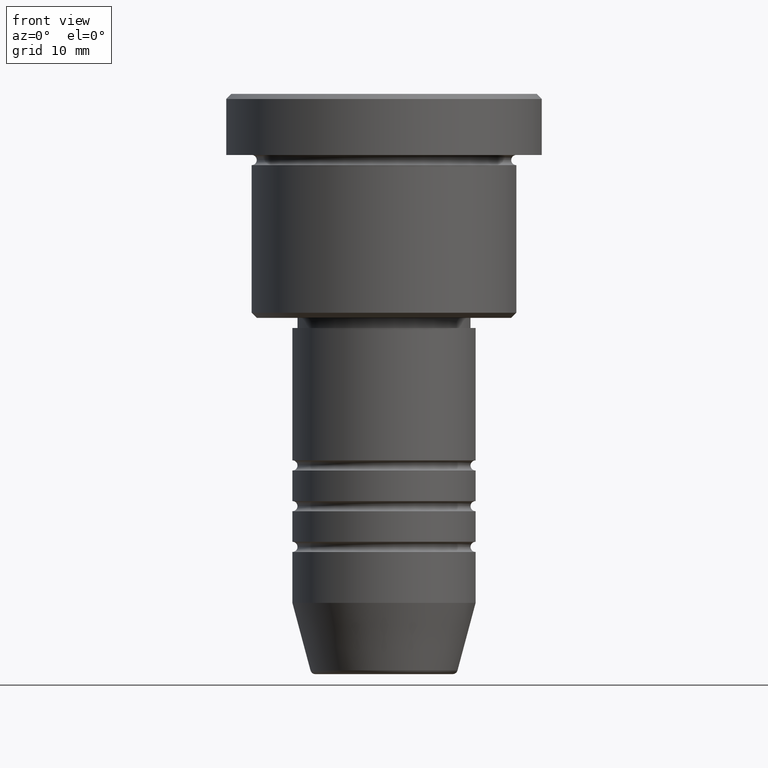
[diagram: clean part render]
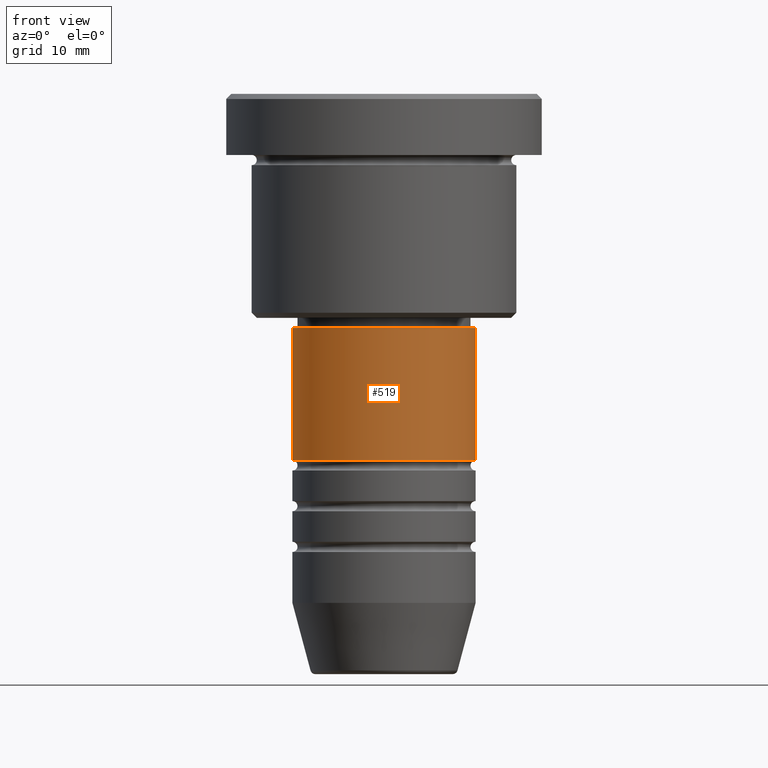
[diagram: same view with one face highlighted and labeled with its STEP entity id]
A machine part, front view. The second image highlights one B-rep face of the part: STEP entity #519.
In plain terms, the highlighted cylindrical surface (partial cylindrical patch) has radius 9 mm, axis along (-0, -0, 1).
Its self-contained STEP definition (entity closure, byte-faithful):
#3 = DIRECTION ( 'NONE',  ( 1.000000000000000000, 0.000000000000000000, 0.000000000000000000 ) ) ;
#16 = CARTESIAN_POINT ( 'NONE',  ( -8.999999999999998224, 1.102182119232617714E-15, -23.00000000000000000 ) ) ;
#40 = LINE ( 'NONE', #495, #1160 ) ;
#80 = VERTEX_POINT ( 'NONE', #327 ) ;
#107 = CARTESIAN_POINT ( 'NONE',  ( -9.000000000000001776, 1.102182119232617911E-15, -35.99999999999989342 ) ) ;
#120 = CARTESIAN_POINT ( 'NONE',  ( 0.000000000000000000, 0.000000000000000000, -23.00000000000000000 ) ) ;
#150 = ORIENTED_EDGE ( 'NONE', *, *, #709, .T. ) ;
#185 = CARTESIAN_POINT ( 'NONE',  ( 0.000000000000000000, 0.000000000000000000, -35.99999999999989342 ) ) ;
#275 = CIRCLE ( 'NONE', #743, 9.000000000000001776 ) ;
#306 = EDGE_CURVE ( 'NONE', #603, #453, #40, .T. ) ;
#315 = ORIENTED_EDGE ( 'NONE', *, *, #522, .T. ) ;
#327 = CARTESIAN_POINT ( 'NONE',  ( 8.999999999999998224, 0.000000000000000000, -23.00000000000000000 ) ) ;
#445 = CYLINDRICAL_SURFACE ( 'NONE', #817, 9.000000000000000000 ) ;
#448 = DIRECTION ( 'NONE',  ( -0.000000000000000000, -0.000000000000000000, 1.000000000000000000 ) ) ;
#453 = VERTEX_POINT ( 'NONE', #16 ) ;
#471 = LINE ( 'NONE', #855, #981 ) ;
#495 = CARTESIAN_POINT ( 'NONE',  ( -9.000000000000000000, 1.102182119232617714E-15, 0.000000000000000000 ) ) ;
#518 = ORIENTED_EDGE ( 'NONE', *, *, #1126, .F. ) ;
#519 = ADVANCED_FACE ( 'NONE', ( #636 ), #445, .T. ) ;
#522 = EDGE_CURVE ( 'NONE', #603, #1156, #275, .T. ) ;
#542 = DIRECTION ( 'NONE',  ( -0.000000000000000000, -0.000000000000000000, 1.000000000000000000 ) ) ;
#548 = ORIENTED_EDGE ( 'NONE', *, *, #306, .F. ) ;
#590 = CARTESIAN_POINT ( 'NONE',  ( 9.000000000000001776, 0.000000000000000000, -35.99999999999989342 ) ) ;
#603 = VERTEX_POINT ( 'NONE', #107 ) ;
#636 = FACE_OUTER_BOUND ( 'NONE', #1116, .T. ) ;
#684 = AXIS2_PLACEMENT_3D ( 'NONE', #120, #698, #940 ) ;
#698 = DIRECTION ( 'NONE',  ( -0.000000000000000000, -0.000000000000000000, 1.000000000000000000 ) ) ;
#709 = EDGE_CURVE ( 'NONE', #1156, #80, #471, .T. ) ;
#743 = AXIS2_PLACEMENT_3D ( 'NONE', #185, #542, #3 ) ;
#817 = AXIS2_PLACEMENT_3D ( 'NONE', #1001, #448, #1018 ) ;
#855 = CARTESIAN_POINT ( 'NONE',  ( 9.000000000000000000, 0.000000000000000000, 0.000000000000000000 ) ) ;
#877 = DIRECTION ( 'NONE',  ( -0.000000000000000000, -0.000000000000000000, 1.000000000000000000 ) ) ;
#940 = DIRECTION ( 'NONE',  ( 1.000000000000000000, 0.000000000000000000, 0.000000000000000000 ) ) ;
#981 = VECTOR ( 'NONE', #1027, 1000.000000000000000 ) ;
#1001 = CARTESIAN_POINT ( 'NONE',  ( 0.000000000000000000, 0.000000000000000000, 0.000000000000000000 ) ) ;
#1018 = DIRECTION ( 'NONE',  ( 1.000000000000000000, 0.000000000000000000, 0.000000000000000000 ) ) ;
#1027 = DIRECTION ( 'NONE',  ( -0.000000000000000000, -0.000000000000000000, 1.000000000000000000 ) ) ;
#1116 = EDGE_LOOP ( 'NONE', ( #548, #315, #150, #518 ) ) ;
#1126 = EDGE_CURVE ( 'NONE', #453, #80, #1143, .T. ) ;
#1143 = CIRCLE ( 'NONE', #684, 8.999999999999998224 ) ;
#1156 = VERTEX_POINT ( 'NONE', #590 ) ;
#1160 = VECTOR ( 'NONE', #877, 1000.000000000000000 ) ;